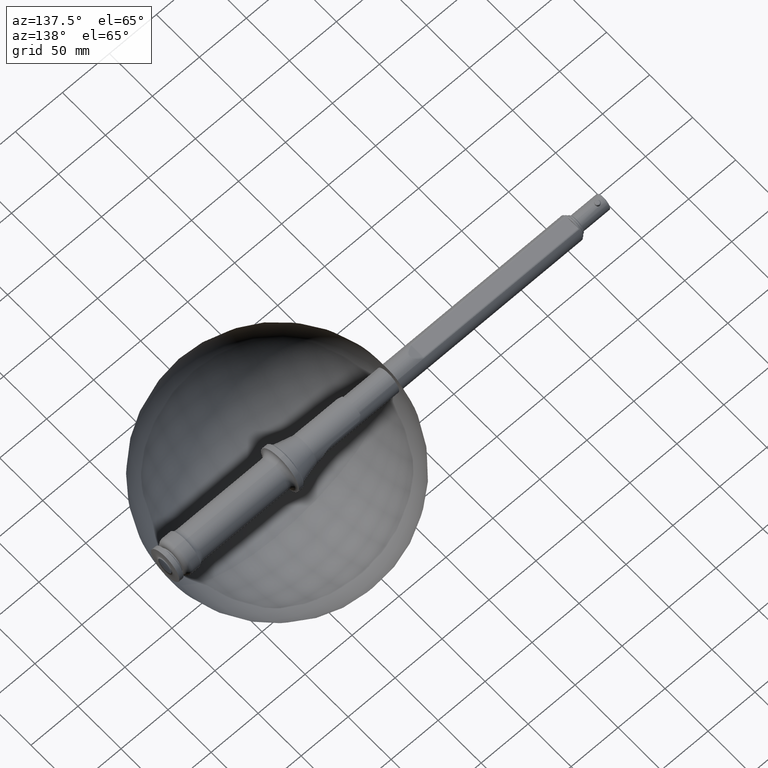
[diagram: clean part render]
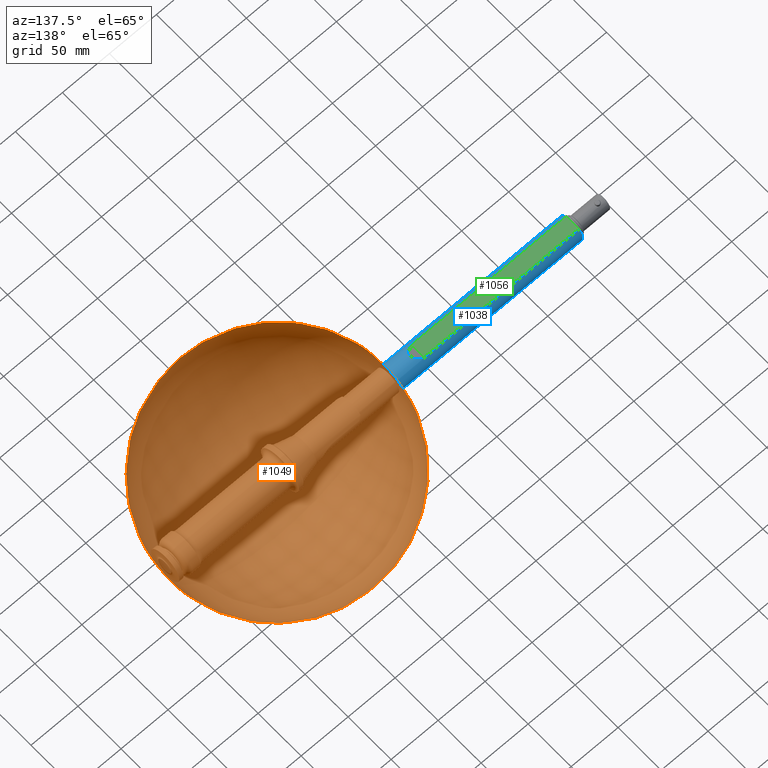
[diagram: same view with three faces highlighted in distinct colors, each labeled with its STEP entity id]
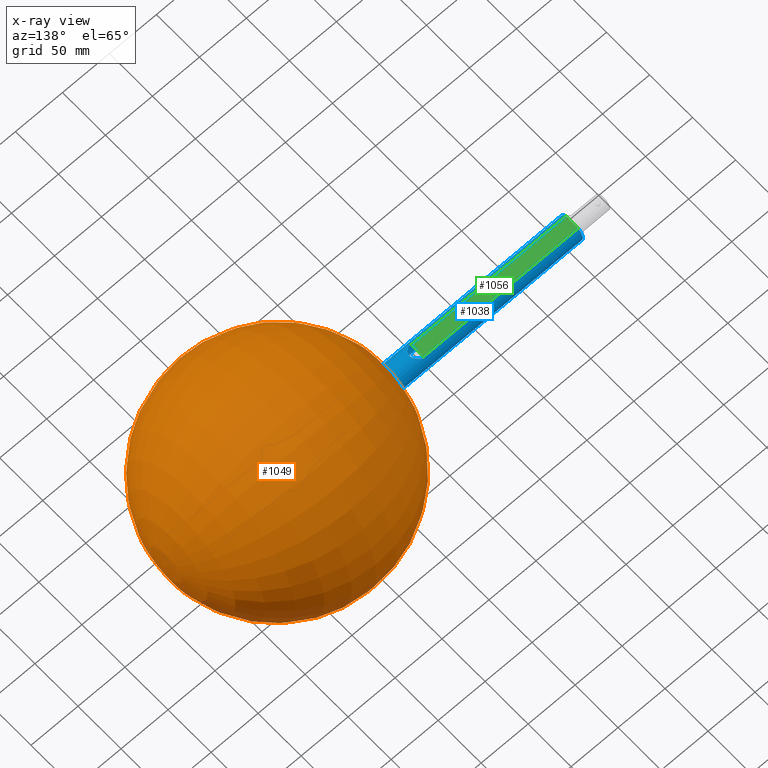
[diagram: x-ray of the same camera — body ghosted, the three highlighted faces saturated]
A machine part, auxiliary view with three faces highlighted in distinct colors.
The next image is the same camera in x-ray (body ghosted, the three faces saturated) — at least one of them is partly hidden behind the body in this view.
Their STEP definitions:

[orange] entity #1049 — the highlighted toroidal blend (fillet) surface has major radius 2.0033 mm and minor (blend) radius 120 mm.
#24=VERTEX_LOOP('',#410);
#25=DEGENERATE_TOROIDAL_SURFACE('',#1132,2.00333223018862,120.,.T.);
#95=CIRCLE('',#1133,16.5);
#164=ORIENTED_EDGE('',*,*,#325,.F.);
#325=EDGE_CURVE('',#409,#409,#95,.T.);
#409=VERTEX_POINT('',#1515);
#410=VERTEX_POINT('',#1516);
#513=EDGE_LOOP('',(#164));
#600=FACE_BOUND('',#513,.T.);
#601=FACE_BOUND('',#24,.T.);
#1049=ADVANCED_FACE('',(#600,#601),#25,.T.);
#1132=AXIS2_PLACEMENT_3D('',#1513,#1278,#1279);
#1133=AXIS2_PLACEMENT_3D('',#1514,#1280,#1281);
#1278=DIRECTION('',(-1.,0.,0.));
#1279=DIRECTION('',(0.,0.,1.));
#1280=DIRECTION('',(-1.,0.,0.));
#1281=DIRECTION('',(0.,0.,1.));
#1513=CARTESIAN_POINT('',(-61.9832765845953,0.,0.));
#1514=CARTESIAN_POINT('',(57.1378660541979,0.,0.));
#1515=CARTESIAN_POINT('',(57.1378660541979,0.,16.5));
#1516=CARTESIAN_POINT('',(58.,0.,0.));

[blue] entity #1038 — the highlighted cylindrical surface (bore or boss wall) has radius 12.5 mm, axis along (-1, 0, 0).
#41=B_SPLINE_CURVE_WITH_KNOTS('',3,(#1461,#1462,#1463,#1464),
 .UNSPECIFIED.,.F.,.F.,(4,4),(0.,0.00126041265031236),.UNSPECIFIED.);
#42=B_SPLINE_CURVE_WITH_KNOTS('',3,(#1468,#1469,#1470,#1471),
 .UNSPECIFIED.,.F.,.F.,(4,4),(0.,0.0012649888982125),.UNSPECIFIED.);
#53=ELLIPSE('',#1106,35.8498256620596,12.5);
#54=ELLIPSE('',#1108,35.8498256620584,12.5);
#59=CYLINDRICAL_SURFACE('',#1105,12.5);
#79=CIRCLE('',#1103,12.5);
#81=CIRCLE('',#1107,12.5);
#82=CIRCLE('',#1109,12.5);
#129=ORIENTED_EDGE('',*,*,#299,.F.);
#130=ORIENTED_EDGE('',*,*,#301,.T.);
#131=ORIENTED_EDGE('',*,*,#302,.T.);
#132=ORIENTED_EDGE('',*,*,#303,.T.);
#133=ORIENTED_EDGE('',*,*,#304,.F.);
#134=ORIENTED_EDGE('',*,*,#305,.T.);
#135=ORIENTED_EDGE('',*,*,#306,.F.);
#136=ORIENTED_EDGE('',*,*,#307,.T.);
#137=ORIENTED_EDGE('',*,*,#308,.F.);
#138=ORIENTED_EDGE('',*,*,#309,.T.);
#139=ORIENTED_EDGE('',*,*,#310,.T.);
#299=EDGE_CURVE('',#385,#386,#79,.T.);
#301=EDGE_CURVE('',#385,#387,#449,.F.);
#302=EDGE_CURVE('',#387,#388,#53,.T.);
#303=EDGE_CURVE('',#388,#389,#450,.T.);
#304=EDGE_CURVE('',#390,#389,#81,.T.);
#305=EDGE_CURVE('',#390,#391,#451,.F.);
#306=EDGE_CURVE('',#392,#391,#41,.T.);
#307=EDGE_CURVE('',#392,#393,#54,.T.);
#308=EDGE_CURVE('',#394,#393,#42,.T.);
#309=EDGE_CURVE('',#394,#386,#452,.T.);
#310=EDGE_CURVE('',#395,#395,#82,.T.);
#385=VERTEX_POINT('',#1446);
#386=VERTEX_POINT('',#1448);
#387=VERTEX_POINT('',#1452);
#388=VERTEX_POINT('',#1454);
#389=VERTEX_POINT('',#1456);
#390=VERTEX_POINT('',#1458);
#391=VERTEX_POINT('',#1460);
#392=VERTEX_POINT('',#1465);
#393=VERTEX_POINT('',#1467);
#394=VERTEX_POINT('',#1472);
#395=VERTEX_POINT('',#1475);
#449=LINE('',#1451,#471);
#450=LINE('',#1455,#472);
#451=LINE('',#1459,#473);
#452=LINE('',#1473,#474);
#471=VECTOR('',#1220,1000.);
#472=VECTOR('',#1223,1000.);
#473=VECTOR('',#1226,1000.);
#474=VECTOR('',#1229,1000.);
#492=EDGE_LOOP('',(#129,#130,#131,#132,#133,#134,#135,#136,#137,#138));
#493=EDGE_LOOP('',(#139));
#579=FACE_BOUND('',#492,.T.);
#580=FACE_BOUND('',#493,.T.);
#1038=ADVANCED_FACE('',(#579,#580),#59,.T.);
#1103=AXIS2_PLACEMENT_3D('',#1447,#1214,#1215);
#1105=AXIS2_PLACEMENT_3D('',#1450,#1218,#1219);
#1106=AXIS2_PLACEMENT_3D('',#1453,#1221,#1222);
#1107=AXIS2_PLACEMENT_3D('',#1457,#1224,#1225);
#1108=AXIS2_PLACEMENT_3D('',#1466,#1227,#1228);
#1109=AXIS2_PLACEMENT_3D('',#1474,#1230,#1231);
#1214=DIRECTION('',(-1.,0.,0.));
#1215=DIRECTION('',(0.,0.,1.));
#1218=DIRECTION('',(-1.,0.,0.));
#1219=DIRECTION('',(0.,0.,1.));
#1220=DIRECTION('',(-1.,0.,0.));
#1221=DIRECTION('',(0.348676730476514,0.,0.9372430515209));
#1222=DIRECTION('',(-0.9372430515209,0.,0.348676730476514));
#1223=DIRECTION('',(-1.,0.,0.));
#1224=DIRECTION('',(-1.,0.,0.));
#1225=DIRECTION('',(0.,0.,1.));
#1226=DIRECTION('',(-1.,0.,0.));
#1227=DIRECTION('',(0.348676730476526,0.,-0.937243051520895));
#1228=DIRECTION('',(-0.937243051520895,0.,-0.348676730476526));
#1229=DIRECTION('',(-1.,0.,0.));
#1230=DIRECTION('',(-1.,0.,0.));
#1231=DIRECTION('',(0.,0.,1.));
#1446=CARTESIAN_POINT('',(-376.,-8.09611339805671,-9.52380952380956));
#1447=CARTESIAN_POINT('',(-376.,0.,0.));
#1448=CARTESIAN_POINT('',(-376.,-8.09611339805682,9.52380952380947));
#1450=CARTESIAN_POINT('',(-173.,0.,0.));
#1451=CARTESIAN_POINT('',(-173.,-8.09611339805672,-9.52380952380958));
#1452=CARTESIAN_POINT('',(-210.694778154304,-8.09611339805672,-9.52380952380957));
#1453=CARTESIAN_POINT('',(-236.294778154305,0.,0.));
#1454=CARTESIAN_POINT('',(-210.694778154304,8.09611339805672,-9.52380952380957));
#1455=CARTESIAN_POINT('',(-173.,8.09611339805672,-9.52380952380958));
#1456=CARTESIAN_POINT('',(-376.,8.09611339805671,-9.52380952380956));
#1457=CARTESIAN_POINT('',(-376.,0.,0.));
#1458=CARTESIAN_POINT('',(-376.,8.09611339805682,9.52380952380947));
#1459=CARTESIAN_POINT('',(-173.,8.09611339805683,9.52380952380948));
#1460=CARTESIAN_POINT('',(-211.305221845696,8.09611339805683,9.52380952380948));
#1461=CARTESIAN_POINT('',(-210.112121873152,7.83398150414374,9.74057153316648));
#1462=CARTESIAN_POINT('',(-210.474055994575,8.00139950900926,9.60592342251802));
#1463=CARTESIAN_POINT('',(-210.88378299194,8.09611339805722,9.52380952380943));
#1464=CARTESIAN_POINT('',(-211.305221845696,8.09611339805722,9.52380952380943));
#1465=CARTESIAN_POINT('',(-210.112121873152,7.83398150414374,9.74057153316648));
#1466=CARTESIAN_POINT('',(-236.294778154304,0.,0.));
#1467=CARTESIAN_POINT('',(-210.112121873152,-7.83398150414374,9.74057153316648));
#1468=CARTESIAN_POINT('',(-211.305221845696,-8.09611339805683,9.52380952380948));
#1469=CARTESIAN_POINT('',(-210.882275327113,-8.09611339805683,9.52380952380948));
#1470=CARTESIAN_POINT('',(-210.474916628637,-8.00179760808023,9.60560324615586));
#1471=CARTESIAN_POINT('',(-210.112121873152,-7.83398150414374,9.74057153316648));
#1472=CARTESIAN_POINT('',(-211.305221845696,-8.09611339805683,9.52380952380948));
#1473=CARTESIAN_POINT('',(-173.,-8.09611339805683,9.52380952380948));
#1474=CARTESIAN_POINT('',(-71.,0.,0.));
#1475=CARTESIAN_POINT('',(-71.,0.,12.5));

[green] entity #1056 — the highlighted planar face has unit normal (0, 0, 1).
#183=ORIENTED_EDGE('',*,*,#337,.T.);
#184=ORIENTED_EDGE('',*,*,#338,.T.);
#185=ORIENTED_EDGE('',*,*,#313,.T.);
#186=ORIENTED_EDGE('',*,*,#339,.T.);
#187=ORIENTED_EDGE('',*,*,#295,.T.);
#188=ORIENTED_EDGE('',*,*,#340,.T.);
#295=EDGE_CURVE('',#381,#382,#447,.T.);
#313=EDGE_CURVE('',#399,#398,#454,.T.);
#337=EDGE_CURVE('',#419,#420,#460,.T.);
#338=EDGE_CURVE('',#420,#399,#461,.F.);
#339=EDGE_CURVE('',#398,#381,#462,.T.);
#340=EDGE_CURVE('',#382,#419,#463,.T.);
#381=VERTEX_POINT('',#1439);
#382=VERTEX_POINT('',#1440);
#398=VERTEX_POINT('',#1481);
#399=VERTEX_POINT('',#1483);
#419=VERTEX_POINT('',#1550);
#420=VERTEX_POINT('',#1551);
#447=LINE('',#1438,#469);
#454=LINE('',#1482,#476);
#460=LINE('',#1549,#482);
#461=LINE('',#1552,#483);
#462=LINE('',#1553,#484);
#463=LINE('',#1554,#485);
#469=VECTOR('',#1208,1000.);
#476=VECTOR('',#1237,1000.);
#482=VECTOR('',#1309,1000.);
#483=VECTOR('',#1310,1000.);
#484=VECTOR('',#1311,1000.);
#485=VECTOR('',#1312,1000.);
#523=EDGE_LOOP('',(#183,#184,#185,#186,#187,#188));
#611=FACE_BOUND('',#523,.T.);
#673=PLANE('',#1144);
#1056=ADVANCED_FACE('',(#611),#673,.T.);
#1144=AXIS2_PLACEMENT_3D('',#1548,#1307,#1308);
#1208=DIRECTION('',(0.,-1.,0.));
#1237=DIRECTION('',(0.,-1.,0.));
#1307=DIRECTION('',(0.,0.,1.));
#1308=DIRECTION('',(1.,0.,0.));
#1309=DIRECTION('',(0.,1.,0.));
#1310=DIRECTION('',(1.,0.,0.));
#1311=DIRECTION('',(0.,-1.,0.));
#1312=DIRECTION('',(1.,0.,0.));
#1438=CARTESIAN_POINT('',(-376.,0.,9.99999999999996));
#1439=CARTESIAN_POINT('',(-376.,-3.36191909479919,9.99999999999996));
#1440=CARTESIAN_POINT('',(-376.,-6.80073525436774,9.99999999999996));
#1481=CARTESIAN_POINT('',(-376.,3.36191909480296,9.99999999999996));
#1482=CARTESIAN_POINT('',(-376.,0.,9.99999999999996));
#1483=CARTESIAN_POINT('',(-376.,6.80073525436774,9.99999999999996));
#1548=CARTESIAN_POINT('',(-376.,-23.950875296928,9.99999999999996));
#1549=CARTESIAN_POINT('',(-211.305221845696,7.50000000000001,9.99999999999996));
#1550=CARTESIAN_POINT('',(-211.305221845696,-6.80073525436774,9.99999999999996));
#1551=CARTESIAN_POINT('',(-211.305221845696,6.80073525436774,9.99999999999996));
#1552=CARTESIAN_POINT('',(-376.,6.80073525436774,9.99999999999996));
#1553=CARTESIAN_POINT('',(-376.,0.,9.99999999999996));
#1554=CARTESIAN_POINT('',(-211.,-6.80073525436774,9.99999999999996));